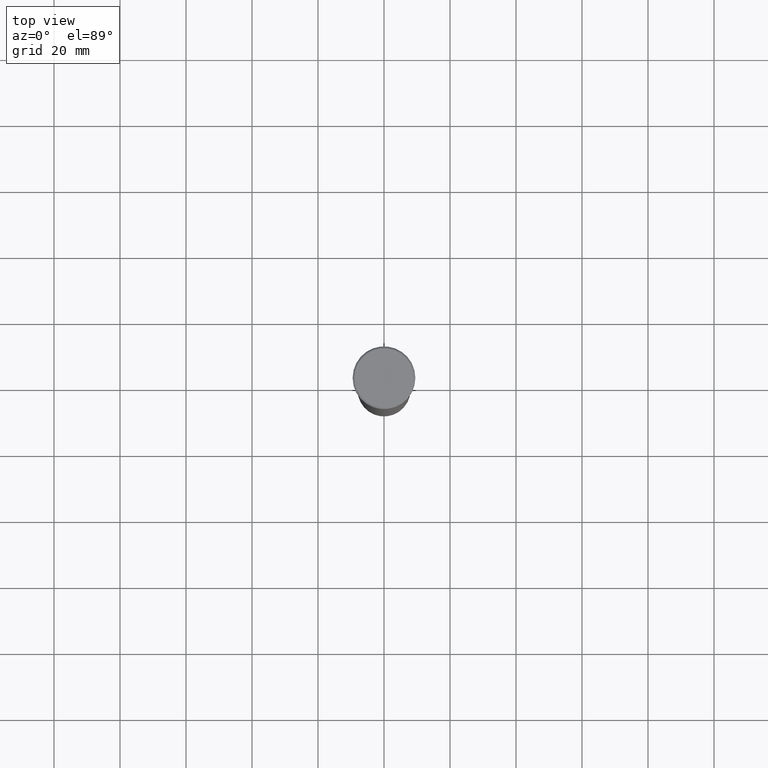
[diagram: clean part render]
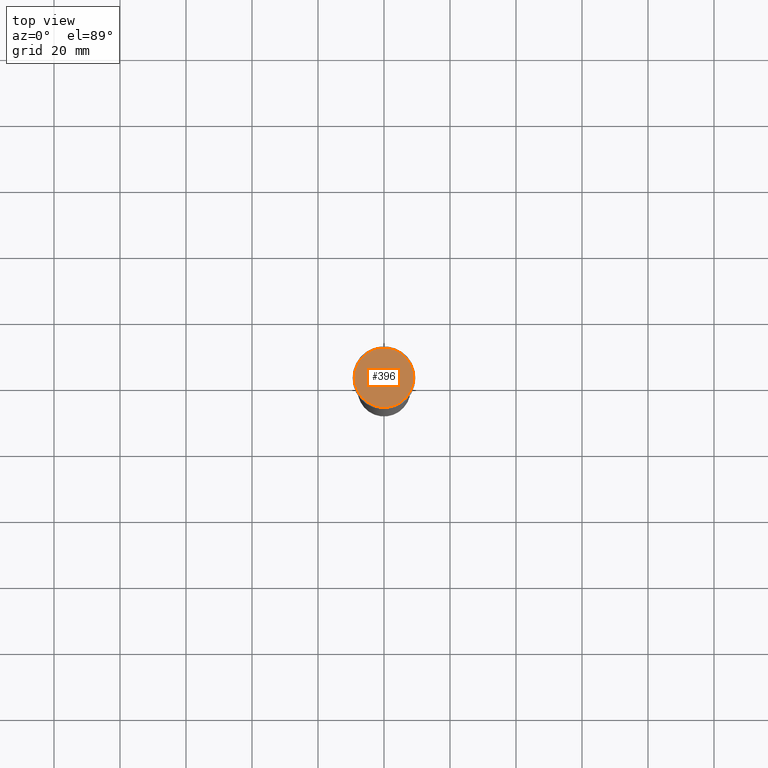
[diagram: same view with one face highlighted and labeled with its STEP entity id]
A machine part, top view. The second image highlights one B-rep face of the part: STEP entity #396.
In plain terms, the highlighted planar face has unit normal (0, -0, 1).
Its self-contained STEP definition (entity closure, byte-faithful):
#20 = DIRECTION ( 'NONE',  ( -0.000000000000000000, -0.000000000000000000, 1.000000000000000000 ) ) ;
#50 = AXIS2_PLACEMENT_3D ( 'NONE', #576, #356, #343 ) ;
#63 = VERTEX_POINT ( 'NONE', #100 ) ;
#100 = CARTESIAN_POINT ( 'NONE',  ( -9.000000000000001776, 0.000000000000000000, 0.000000000000000000 ) ) ;
#109 = CARTESIAN_POINT ( 'NONE',  ( 0.000000000000000000, 0.000000000000000000, 0.000000000000000000 ) ) ;
#210 = DIRECTION ( 'NONE',  ( 0.000000000000000000, -0.000000000000000000, 1.000000000000000000 ) ) ;
#216 = DIRECTION ( 'NONE',  ( 1.000000000000000000, 0.000000000000000000, 0.000000000000000000 ) ) ;
#262 = CARTESIAN_POINT ( 'NONE',  ( 0.000000000000000000, 0.000000000000000000, 0.000000000000000000 ) ) ;
#325 = CIRCLE ( 'NONE', #50, 9.000000000000001776 ) ;
#343 = DIRECTION ( 'NONE',  ( 1.000000000000000000, 0.000000000000000000, 0.000000000000000000 ) ) ;
#353 = CARTESIAN_POINT ( 'NONE',  ( 9.000000000000001776, 1.132798289211301698E-15, 0.000000000000000000 ) ) ;
#356 = DIRECTION ( 'NONE',  ( -0.000000000000000000, -0.000000000000000000, 1.000000000000000000 ) ) ;
#360 = AXIS2_PLACEMENT_3D ( 'NONE', #262, #20, #562 ) ;
#396 = ADVANCED_FACE ( 'NONE', ( #437 ), #441, .T. ) ;
#414 = CIRCLE ( 'NONE', #360, 9.000000000000001776 ) ;
#437 = FACE_OUTER_BOUND ( 'NONE', #451, .T. ) ;
#441 = PLANE ( 'NONE',  #463 ) ;
#451 = EDGE_LOOP ( 'NONE', ( #489, #527 ) ) ;
#457 = EDGE_CURVE ( 'NONE', #63, #578, #325, .T. ) ;
#463 = AXIS2_PLACEMENT_3D ( 'NONE', #109, #210, #216 ) ;
#489 = ORIENTED_EDGE ( 'NONE', *, *, #457, .T. ) ;
#503 = EDGE_CURVE ( 'NONE', #578, #63, #414, .T. ) ;
#527 = ORIENTED_EDGE ( 'NONE', *, *, #503, .T. ) ;
#562 = DIRECTION ( 'NONE',  ( 1.000000000000000000, 0.000000000000000000, 0.000000000000000000 ) ) ;
#576 = CARTESIAN_POINT ( 'NONE',  ( 0.000000000000000000, 0.000000000000000000, 0.000000000000000000 ) ) ;
#578 = VERTEX_POINT ( 'NONE', #353 ) ;